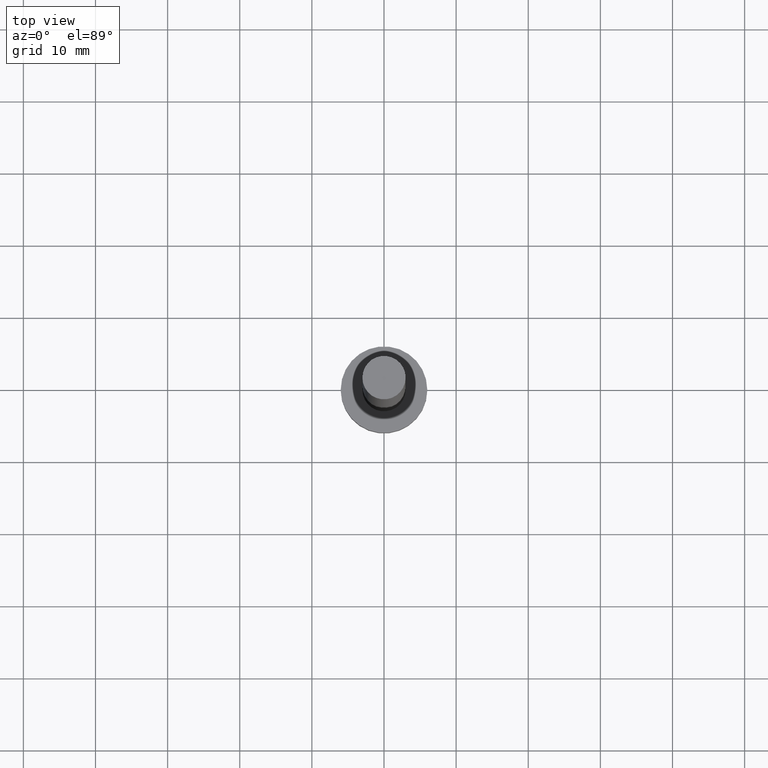
[diagram: clean part render]
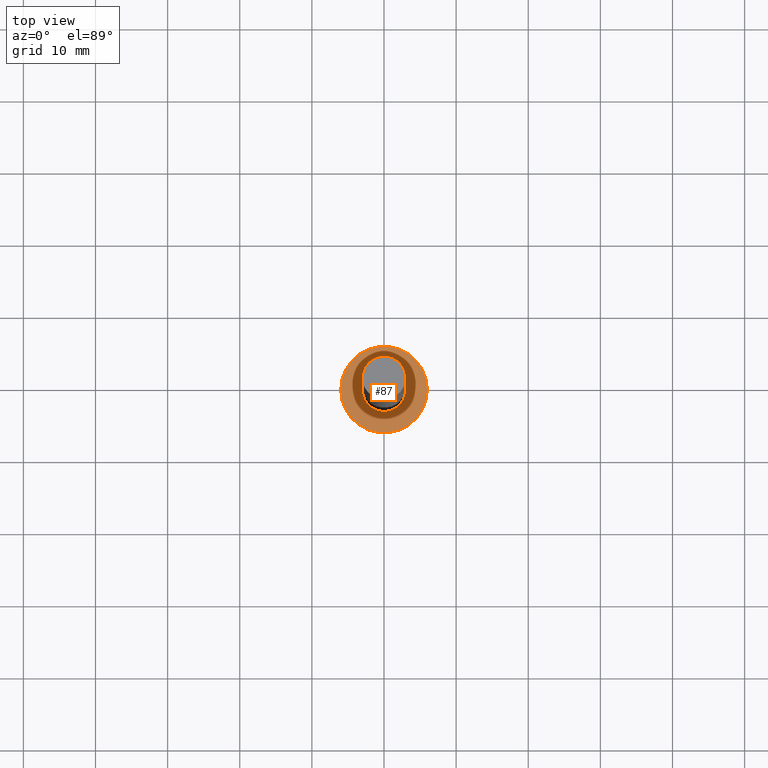
[diagram: same view with one face highlighted and labeled with its STEP entity id]
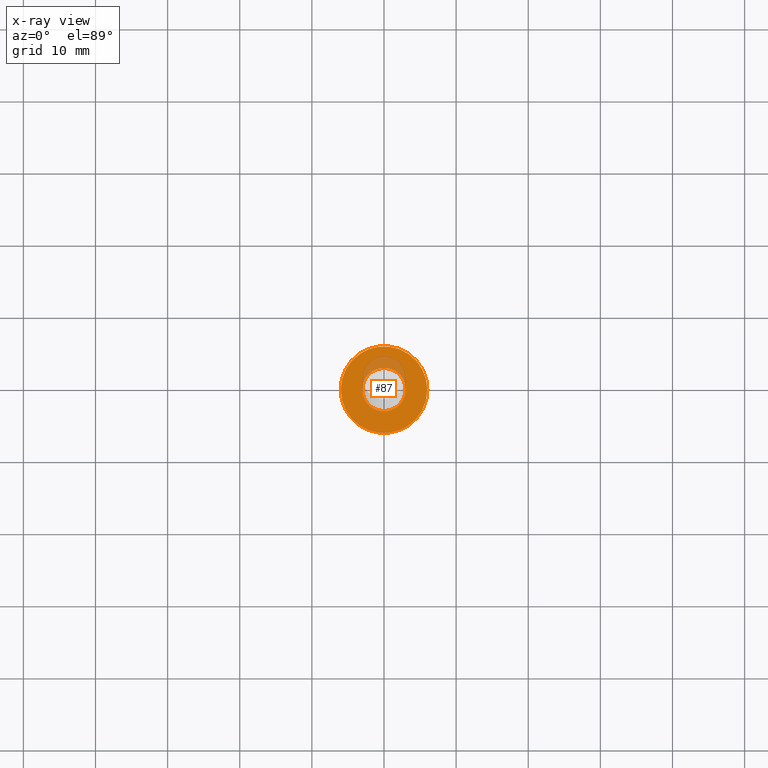
[diagram: x-ray of the same camera — body ghosted, the highlighted face saturated]
A machine part, top view. The second image highlights one B-rep face of the part: STEP entity #87.
The next image is the same camera in x-ray: the body ghosted, the highlighted face saturated — about 12% of this face is hidden behind the body in this view.
In plain terms, the highlighted planar face has unit normal (0, 0, 1).
Its self-contained STEP definition (entity closure, byte-faithful):
#4 = DIRECTION ( 'NONE',  ( 1.000000000000000000, 0.000000000000000000, 0.000000000000000000 ) ) ;
#6 = CARTESIAN_POINT ( 'NONE',  ( 0.000000000000000000, 0.000000000000000000, 5.000000000000000000 ) ) ;
#8 = DIRECTION ( 'NONE',  ( 0.000000000000000000, 0.000000000000000000, 1.000000000000000000 ) ) ;
#20 = VERTEX_POINT ( 'NONE', #151 ) ;
#23 = AXIS2_PLACEMENT_3D ( 'NONE', #214, #90, #235 ) ;
#27 = FACE_BOUND ( 'NONE', #55, .T. ) ;
#33 = VERTEX_POINT ( 'NONE', #35 ) ;
#35 = CARTESIAN_POINT ( 'NONE',  ( 6.000000000000000888, 7.347880794884120722E-16, 5.000000000000000000 ) ) ;
#44 = EDGE_CURVE ( 'NONE', #188, #33, #125, .T. ) ;
#52 = DIRECTION ( 'NONE',  ( 1.000000000000000000, 0.000000000000000000, 0.000000000000000000 ) ) ;
#55 = EDGE_LOOP ( 'NONE', ( #60, #158 ) ) ;
#59 = EDGE_CURVE ( 'NONE', #20, #113, #242, .T. ) ;
#60 = ORIENTED_EDGE ( 'NONE', *, *, #233, .F. ) ;
#79 = DIRECTION ( 'NONE',  ( 0.000000000000000000, 0.000000000000000000, 1.000000000000000000 ) ) ;
#80 = CARTESIAN_POINT ( 'NONE',  ( 0.000000000000000000, 0.000000000000000000, 5.000000000000000000 ) ) ;
#81 = EDGE_CURVE ( 'NONE', #33, #188, #215, .T. ) ;
#86 = DIRECTION ( 'NONE',  ( 0.000000000000000000, 0.000000000000000000, 1.000000000000000000 ) ) ;
#87 = ADVANCED_FACE ( 'NONE', ( #27, #178 ), #132, .T. ) ;
#90 = DIRECTION ( 'NONE',  ( 0.000000000000000000, 0.000000000000000000, 1.000000000000000000 ) ) ;
#113 = VERTEX_POINT ( 'NONE', #147 ) ;
#125 = CIRCLE ( 'NONE', #219, 6.000000000000000888 ) ;
#129 = CIRCLE ( 'NONE', #165, 3.000000000000000444 ) ;
#132 = PLANE ( 'NONE',  #255 ) ;
#147 = CARTESIAN_POINT ( 'NONE',  ( -3.000000000000000444, 0.000000000000000000, 5.000000000000000000 ) ) ;
#151 = CARTESIAN_POINT ( 'NONE',  ( 3.000000000000000444, 3.673940397442060361E-16, 5.000000000000000000 ) ) ;
#158 = ORIENTED_EDGE ( 'NONE', *, *, #59, .F. ) ;
#165 = AXIS2_PLACEMENT_3D ( 'NONE', #192, #79, #52 ) ;
#178 = FACE_OUTER_BOUND ( 'NONE', #249, .T. ) ;
#182 = CARTESIAN_POINT ( 'NONE',  ( 0.000000000000000000, 0.000000000000000000, 5.000000000000000000 ) ) ;
#183 = DIRECTION ( 'NONE',  ( 1.000000000000000000, 0.000000000000000000, -0.000000000000000000 ) ) ;
#188 = VERTEX_POINT ( 'NONE', #248 ) ;
#192 = CARTESIAN_POINT ( 'NONE',  ( 0.000000000000000000, 0.000000000000000000, 5.000000000000000000 ) ) ;
#209 = ORIENTED_EDGE ( 'NONE', *, *, #44, .T. ) ;
#214 = CARTESIAN_POINT ( 'NONE',  ( 0.000000000000000000, 0.000000000000000000, 5.000000000000000000 ) ) ;
#215 = CIRCLE ( 'NONE', #223, 6.000000000000000888 ) ;
#219 = AXIS2_PLACEMENT_3D ( 'NONE', #80, #86, #4 ) ;
#220 = DIRECTION ( 'NONE',  ( 1.000000000000000000, 0.000000000000000000, 0.000000000000000000 ) ) ;
#223 = AXIS2_PLACEMENT_3D ( 'NONE', #182, #243, #220 ) ;
#228 = ORIENTED_EDGE ( 'NONE', *, *, #81, .T. ) ;
#233 = EDGE_CURVE ( 'NONE', #113, #20, #129, .T. ) ;
#235 = DIRECTION ( 'NONE',  ( 1.000000000000000000, 0.000000000000000000, 0.000000000000000000 ) ) ;
#242 = CIRCLE ( 'NONE', #23, 3.000000000000000444 ) ;
#243 = DIRECTION ( 'NONE',  ( 0.000000000000000000, 0.000000000000000000, 1.000000000000000000 ) ) ;
#248 = CARTESIAN_POINT ( 'NONE',  ( -6.000000000000000888, 0.000000000000000000, 5.000000000000000000 ) ) ;
#249 = EDGE_LOOP ( 'NONE', ( #209, #228 ) ) ;
#255 = AXIS2_PLACEMENT_3D ( 'NONE', #6, #8, #183 ) ;